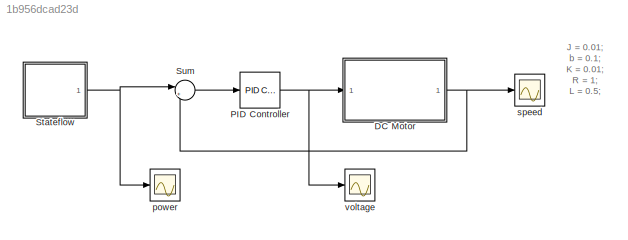
MODEL slx_1b956dcad23d
KIND model
CONFIG AbsTol = auto
CONFIG EnableMultiTasking = off
CONFIG FixedStep = auto
CONFIG MaxStep = auto
CONFIG MinStep = auto
CONFIG RelTol = 1e-3
CONFIG SampleTimeConstraint = Unconstrained
CONFIG SolverName = ode45
CONFIG StartTime = 0.0
CONFIG StopTime = 50
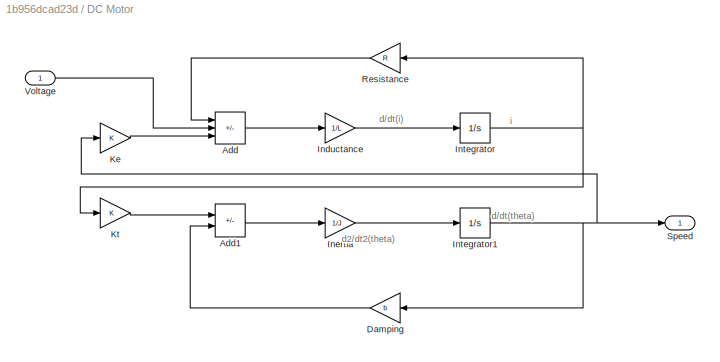
BLOCK [SubSystem] DC Motor
  Ports = [1, 1]
  RequestExecContextInheritance = off
BLOCK [Sum] DC Motor/Add
  IconShape = rectangular
  Inputs = -+-
  Ports = [3, 1]
BLOCK [Sum] DC Motor/Add1
  IconShape = rectangular
  Inputs = +-
  Ports = [2, 1]
BLOCK [Gain] DC Motor/Damping
  Gain = b
BLOCK [Gain] DC Motor/Inductance
  Gain = 1/L
BLOCK [Gain] DC Motor/Inertia
  Gain = 1/J
BLOCK [Integrator] DC Motor/Integrator
  Ports = [1, 1]
BLOCK [Integrator] DC Motor/Integrator1
  Ports = [1, 1]
BLOCK [Gain] DC Motor/Ke
  Gain = K
BLOCK [Gain] DC Motor/Kt
  Gain = K
BLOCK [Gain] DC Motor/Resistance
  Gain = R
BLOCK [Outport] DC Motor/Speed
BLOCK [Inport] DC Motor/Voltage
BLOCK [Reference] PID Controller  REF=pid_lib/PID Controller
  Ports = [1, 1]
  SourceBlock = pid_lib/PID Controller
  SourceProductBaseCode = SL
  SourceType = PID 1dof
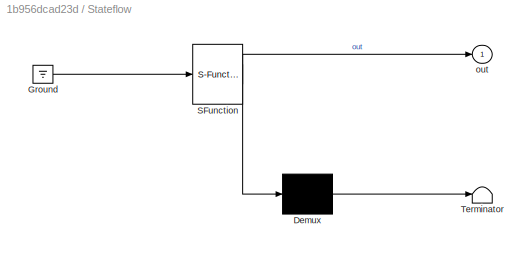
BLOCK [SubSystem] Stateflow
  ErrorFcn = Stateflow.Translate.translate
  PermitHierarchicalResolution = ExplicitOnly
  Ports = [0, 1]
  RequestExecContextInheritance = off
  SFBlockType = Chart
  TreatAsAtomicUnit = on
BLOCK [Demux] Stateflow/ Demux 
  Outputs = 1
  Ports = [1, 1]
BLOCK [Ground] Stateflow/ Ground 
BLOCK [S-Function] Stateflow/ SFunction 
  EnableBusSupport = on
  FunctionName = sf_sfun
  PortCounts = [1 2]
  Ports = [1, 2]
  SFcnIsStateOwnerBlock = off
  SFunctionDeploymentMode = off
  Tag = Stateflow S-Function 3
BLOCK [Terminator] Stateflow/ Terminator 
BLOCK [Outport] Stateflow/out
BLOCK [Sum] Sum
  Inputs = |+-
  Ports = [2, 1]
BLOCK [Scope] power
  Floating = off
  NumInputPorts = 1
  Ports = [1]
  ScopeSpecificationString = Simulink.scopes.TimeScopeBlockCfg('CurrentConfiguration', extmgr.ConfigurationSet(extmgr.Configuration('Core','General UI',true),extmgr.Configuration('Core','Source UI',true),extmgr.Configuration('Sources','WiredSimulink',true,'DataLoggingVariableName','ScopeData1'),extmgr.Configuration('Visuals','Time Domain',true,'SerializedDisplays',{struct('MinYLimReal','-0.125','MaxYLimReal','1.125','YLabelRe...<+1407ch>
BLOCK [Scope] speed
  Floating = off
  NumInputPorts = 1
  Ports = [1]
  ScopeSpecificationString = Simulink.scopes.TimeScopeBlockCfg('CurrentConfiguration', extmgr.ConfigurationSet(extmgr.Configuration('Core','General UI',true),extmgr.Configuration('Core','Source UI',true),extmgr.Configuration('Sources','WiredSimulink',true),extmgr.Configuration('Visuals','Time Domain',true,'SerializedDisplays',{struct('MinYLimReal','-0.12502','MaxYLimReal','1.12522','YLabelReal','','MinYLimMag','0.00000','MaxY...<+1384ch>
BLOCK [Scope] voltage
  Floating = off
  NumInputPorts = 1
  Ports = [1]
  ScopeSpecificationString = Simulink.scopes.TimeScopeBlockCfg('CurrentConfiguration', extmgr.ConfigurationSet(extmgr.Configuration('Core','General UI',true),extmgr.Configuration('Core','Source UI',true),extmgr.Configuration('Sources','WiredSimulink',true,'DataLoggingVariableName','ScopeData1'),extmgr.Configuration('Visuals','Time Domain',true,'SerializedDisplays',{struct('MinYLimReal','-1.25041','MaxYLimReal','11.2537','YLab...<+1428ch>
ANNOTATION (root): J = 0.01; b = 0.1; K = 0.01; R = 1; L = 0.5;
ANNOTATION DC Motor: d/dt(i)
ANNOTATION DC Motor: d/dt(theta)
ANNOTATION DC Motor: d2/dt2(theta)
ANNOTATION DC Motor: i
LINE DC Motor/Add1:1 -> DC Motor/Inertia:1
LINE DC Motor/Add:1 -> DC Motor/Inductance:1
LINE DC Motor/Damping:1 -> DC Motor/Add1:2
LINE DC Motor/Inductance:1 -> DC Motor/Integrator:1
LINE DC Motor/Inertia:1 -> DC Motor/Integrator1:1
NET DC Motor/Integrator1:1 -> DC Motor/Damping:1, DC Motor/Ke:1, DC Motor/Speed:1
NET DC Motor/Integrator:1 -> DC Motor/Kt:1, DC Motor/Resistance:1
LINE DC Motor/Ke:1 -> DC Motor/Add:3
LINE DC Motor/Kt:1 -> DC Motor/Add1:1
LINE DC Motor/Resistance:1 -> DC Motor/Add:1
LINE DC Motor/Voltage:1 -> DC Motor/Add:2
NET DC Motor:1 -> Sum:2, speed:1
NET PID Controller:1 -> DC Motor:1, voltage:1
NET Stateflow:1 -> Sum:1, power:1
LINE Sum:1 -> PID Controller:1
note: NET lines group one-source signal fan-out (src -> all destinations, sorted); 1:1 wires keep LINE
CHART Stateflow states=3 transitions=4
  STATE_LABEL 'OFF\nen:out=0;'
  STATE_LABEL 'HALF_SPEED\nen:out=0.5;'
  STATE_LABEL 'FULL_SPEED\nen:out=1;'
CHART  states=0 transitions=0
